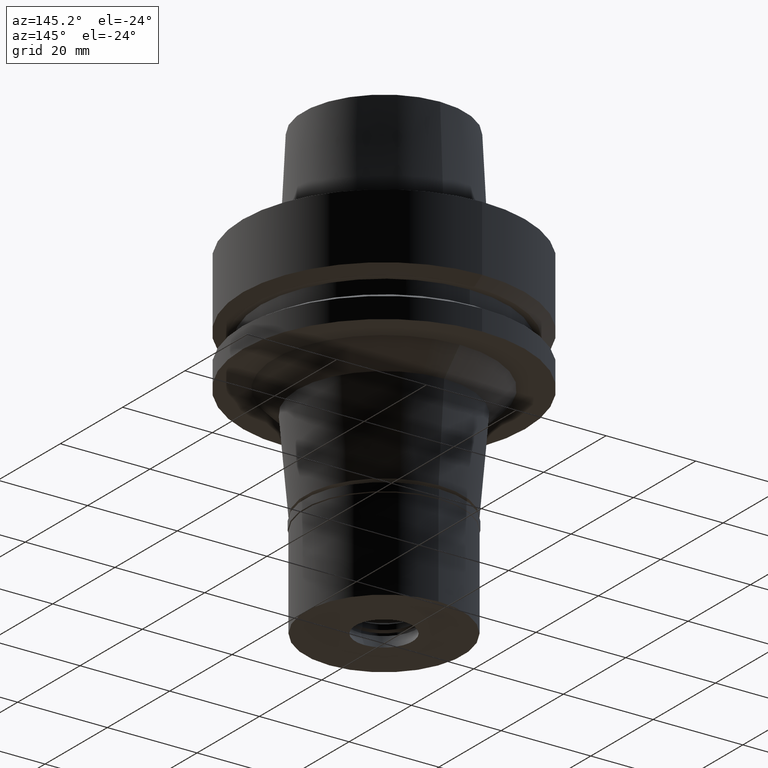
[diagram: clean part render]
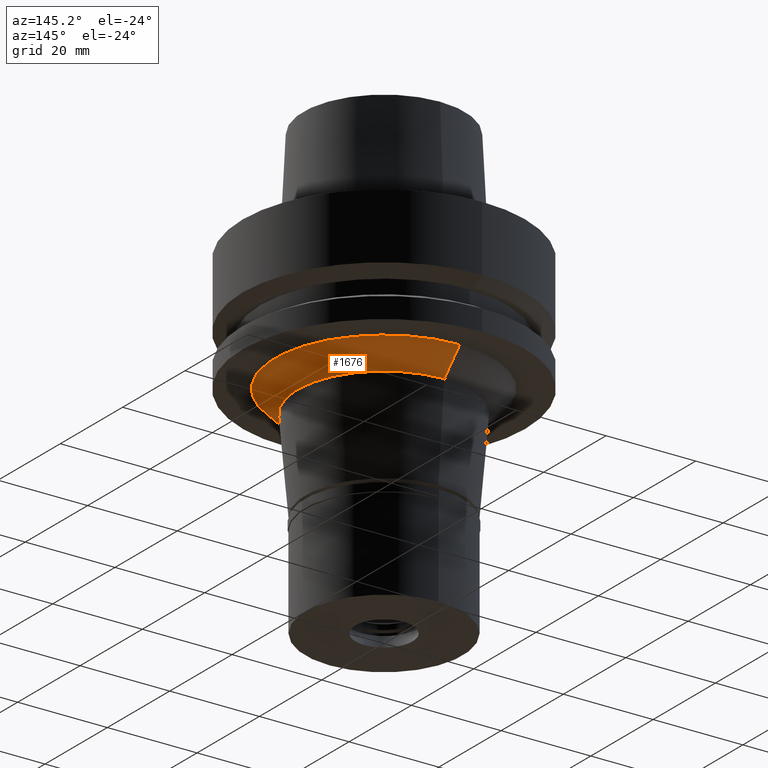
[diagram: same view with one face highlighted and labeled with its STEP entity id]
A machine part, auxiliary view. The second image highlights one B-rep face of the part: STEP entity #1676.
In plain terms, the highlighted conical surface has half-angle 45 deg.
Its self-contained STEP definition (entity closure, byte-faithful):
#56 = CIRCLE ( 'NONE', #2393, 19.31101533497999867 ) ;
#89 = LINE ( 'NONE', #290, #563 ) ;
#126 = CARTESIAN_POINT ( 'NONE',  ( 0.0000000000000000000, 0.0000000000000000000, -26.00000000000000000 ) ) ;
#131 = CARTESIAN_POINT ( 'NONE',  ( 0.0000000000000000000, 0.0000000000000000000, -28.50000000000000000 ) ) ;
#290 = CARTESIAN_POINT ( 'NONE',  ( 0.0000000000000000000, 24.31101533498999956, -26.00000000000000000 ) ) ;
#355 = CARTESIAN_POINT ( 'NONE',  ( 0.0000000000000000000, -19.31101533499000311, -31.00000000000000000 ) ) ;
#484 = CARTESIAN_POINT ( 'NONE',  ( 0.0000000000000000000, 0.0000000000000000000, -31.00000000000000000 ) ) ;
#556 = VERTEX_POINT ( 'NONE', #1785 ) ;
#563 = VECTOR ( 'NONE', #896, 1000.000000000000000 ) ;
#610 = AXIS2_PLACEMENT_3D ( 'NONE', #126, #770, #2512 ) ;
#648 = ORIENTED_EDGE ( 'NONE', *, *, #2139, .T. ) ;
#770 = DIRECTION ( 'NONE',  ( 0.0000000000000000000, 0.0000000000000000000, -1.000000000000000000 ) ) ;
#821 = VERTEX_POINT ( 'NONE', #1823 ) ;
#896 = DIRECTION ( 'NONE',  ( 0.0000000000000000000, -0.7071067811867980391, -0.7071067811862969954 ) ) ;
#902 = EDGE_CURVE ( 'NONE', #2300, #1129, #56, .T. ) ;
#923 = CONICAL_SURFACE ( 'NONE', #1534, 21.81101533498999956, 0.7853981633972997312 ) ;
#1129 = VERTEX_POINT ( 'NONE', #1648 ) ;
#1145 = DIRECTION ( 'NONE',  ( 0.0000000000000000000, -1.000000000000000000, 0.0000000000000000000 ) ) ;
#1202 = ORIENTED_EDGE ( 'NONE', *, *, #2354, .T. ) ;
#1309 = ORIENTED_EDGE ( 'NONE', *, *, #902, .T. ) ;
#1379 = CARTESIAN_POINT ( 'NONE',  ( 0.0000000000000000000, -24.31101533498999956, -26.00000000000000000 ) ) ;
#1471 = DIRECTION ( 'NONE',  ( 0.0000000000000000000, 1.000000000000000000, 0.0000000000000000000 ) ) ;
#1534 = AXIS2_PLACEMENT_3D ( 'NONE', #131, #2725, #1471 ) ;
#1648 = CARTESIAN_POINT ( 'NONE',  ( 0.0000000000000000000, 19.31101533499000311, -31.00000000000000000 ) ) ;
#1676 = ADVANCED_FACE ( 'NONE', ( #2110 ), #923, .T. ) ;
#1785 = CARTESIAN_POINT ( 'NONE',  ( 0.0000000000000000000, -24.31101533498999956, -26.00000000000000000 ) ) ;
#1823 = CARTESIAN_POINT ( 'NONE',  ( 0.0000000000000000000, 24.31101533498999956, -26.00000000000000000 ) ) ;
#2013 = VECTOR ( 'NONE', #2192, 1000.000000000000000 ) ;
#2014 = ORIENTED_EDGE ( 'NONE', *, *, #2260, .F. ) ;
#2110 = FACE_OUTER_BOUND ( 'NONE', #2146, .T. ) ;
#2139 = EDGE_CURVE ( 'NONE', #556, #2300, #2466, .T. ) ;
#2146 = EDGE_LOOP ( 'NONE', ( #1202, #648, #1309, #2014 ) ) ;
#2157 = CIRCLE ( 'NONE', #610, 24.31101533498999956 ) ;
#2192 = DIRECTION ( 'NONE',  ( 0.0000000000000000000, 0.7071067811867980391, -0.7071067811862969954 ) ) ;
#2224 = DIRECTION ( 'NONE',  ( 0.0000000000000000000, 0.0000000000000000000, 1.000000000000000000 ) ) ;
#2260 = EDGE_CURVE ( 'NONE', #821, #1129, #89, .T. ) ;
#2300 = VERTEX_POINT ( 'NONE', #355 ) ;
#2354 = EDGE_CURVE ( 'NONE', #821, #556, #2157, .T. ) ;
#2393 = AXIS2_PLACEMENT_3D ( 'NONE', #484, #2224, #1145 ) ;
#2466 = LINE ( 'NONE', #1379, #2013 ) ;
#2512 = DIRECTION ( 'NONE',  ( 0.0000000000000000000, 1.000000000000000000, 0.0000000000000000000 ) ) ;
#2725 = DIRECTION ( 'NONE',  ( 0.0000000000000000000, 0.0000000000000000000, 1.000000000000000000 ) ) ;